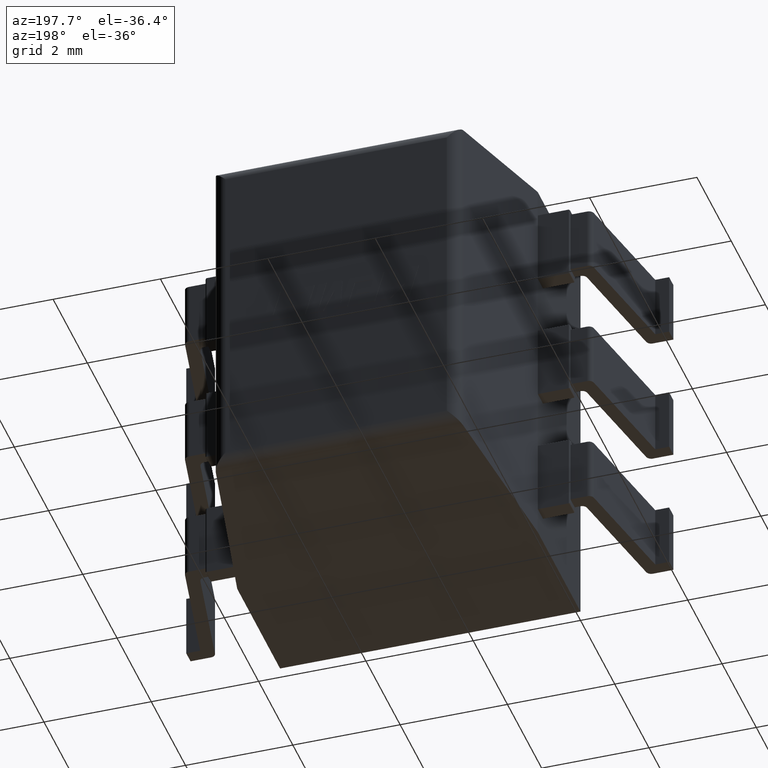
[diagram: clean part render]
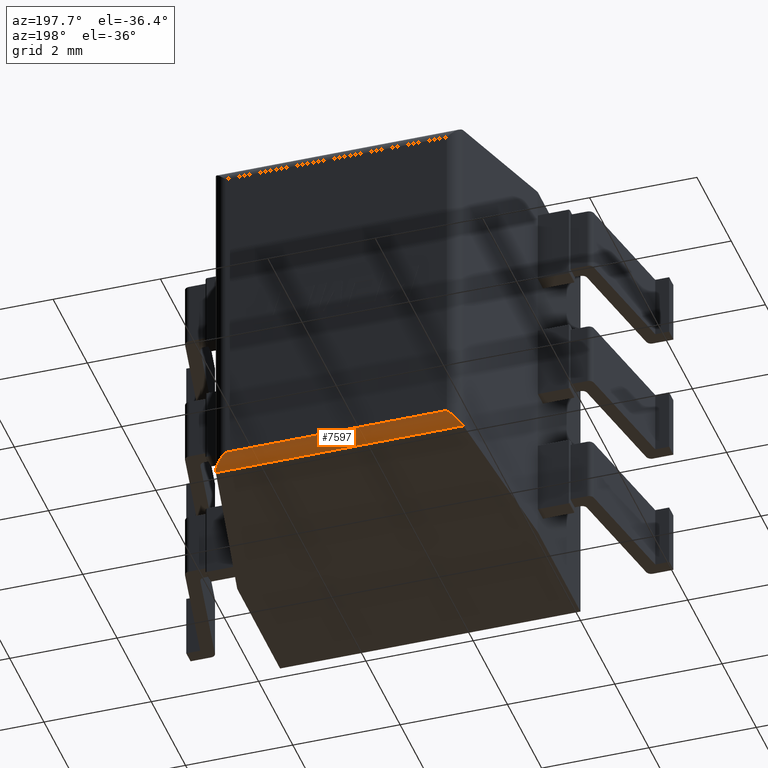
[diagram: same view with one face highlighted and labeled with its STEP entity id]
A machine part, auxiliary view. The second image highlights one B-rep face of the part: STEP entity #7597.
In plain terms, the highlighted cylindrical surface (edge-blend (fillet) strip) has radius 0.25 mm, axis along (-1, 0, 0).
Its self-contained STEP definition (entity closure, byte-faithful):
#95 = VERTEX_POINT ( 'NONE', #6506 ) ;
#215 =( BOUNDED_CURVE ( )  B_SPLINE_CURVE ( 3, ( #589, #6616, #1930, #4609 ),
 .UNSPECIFIED., .F., .F. ) 
 B_SPLINE_CURVE_WITH_KNOTS ( ( 4, 4 ),
 ( 4.712388980384691500, 6.108652381980156100 ),
 .UNSPECIFIED. ) 
 CURVE ( )  GEOMETRIC_REPRESENTATION_ITEM ( )  RATIONAL_B_SPLINE_CURVE ( ( 1.000000000000000000, 0.8440296287459850800, 0.8440296287459850800, 1.000000000000000000 ) ) 
 REPRESENTATION_ITEM ( '' )  );
#589 = CARTESIAN_POINT ( 'NONE',  ( 0.7387558499197165500, 5.500000000000000000, -6.761244150080282900 ) ) ;
#642 = CARTESIAN_POINT ( 'NONE',  ( 5.071019057874602600, 5.293412044416731600, -7.007446088333335200 ) ) ;
#1109 = EDGE_CURVE ( 'NONE', #6581, #3426, #4409, .T. ) ;
#1292 = DIRECTION ( 'NONE',  ( -1.000000000000000000, -0.0000000000000000000, 0.0000000000000000000 ) ) ;
#1348 = LINE ( 'NONE', #642, #2508 ) ;
#1410 = CARTESIAN_POINT ( 'NONE',  ( 0.7387558499197165500, 5.500000000000000000, -6.761244150080282900 ) ) ;
#1428 = DIRECTION ( 'NONE',  ( 0.0000000000000000000, 0.0000000000000000000, 1.000000000000000000 ) ) ;
#1930 = CARTESIAN_POINT ( 'NONE',  ( 0.5145947842552224300, 5.418412044416730700, -6.985405215744776800 ) ) ;
#2073 = CARTESIAN_POINT ( 'NONE',  ( 5.107446088333335700, 5.293412044416731600, -7.007446088333335200 ) ) ;
#2508 = VECTOR ( 'NONE', #5377, 1000.000000000000000 ) ;
#3148 = FACE_OUTER_BOUND ( 'NONE', #6419, .T. ) ;
#3382 = CARTESIAN_POINT ( 'NONE',  ( 0.5289809421253955900, 5.500000000000000000, -6.761244150080282900 ) ) ;
#3426 = VERTEX_POINT ( 'NONE', #4397 ) ;
#3620 = VECTOR ( 'NONE', #1292, 1000.000000000000000 ) ;
#4081 = VERTEX_POINT ( 'NONE', #1410 ) ;
#4151 = CARTESIAN_POINT ( 'NONE',  ( 0.0000000000000000000, 5.249999999999999100, -6.761244150080282900 ) ) ;
#4397 = CARTESIAN_POINT ( 'NONE',  ( 4.861244150080283400, 5.500000000000000000, -6.761244150080282900 ) ) ;
#4409 =( BOUNDED_CURVE ( )  B_SPLINE_CURVE ( 3, ( #2073, #8170, #6147, #5470 ),
 .UNSPECIFIED., .F., .F. ) 
 B_SPLINE_CURVE_WITH_KNOTS ( ( 4, 4 ),
 ( 0.1745329251994306200, 1.570796326794896600 ),
 .UNSPECIFIED. ) 
 CURVE ( )  GEOMETRIC_REPRESENTATION_ITEM ( )  RATIONAL_B_SPLINE_CURVE ( ( 1.000000000000000000, 0.8440296287459847500, 0.8440296287459847500, 1.000000000000000000 ) ) 
 REPRESENTATION_ITEM ( '' )  );
#4609 = CARTESIAN_POINT ( 'NONE',  ( 0.4925539116666644000, 5.293412044416731600, -7.007446088333335200 ) ) ;
#4746 = ORIENTED_EDGE ( 'NONE', *, *, #4910, .F. ) ;
#4909 = CARTESIAN_POINT ( 'NONE',  ( 5.107446088333335700, 5.293412044416731600, -7.007446088333335200 ) ) ;
#4910 = EDGE_CURVE ( 'NONE', #3426, #4081, #5196, .T. ) ;
#5196 = LINE ( 'NONE', #3382, #3620 ) ;
#5377 = DIRECTION ( 'NONE',  ( 1.000000000000000000, -0.0000000000000000000, -0.0000000000000000000 ) ) ;
#5470 = CARTESIAN_POINT ( 'NONE',  ( 4.861244150080283400, 5.500000000000000000, -6.761244150080282900 ) ) ;
#5476 = DIRECTION ( 'NONE',  ( -1.000000000000000000, 0.0000000000000000000, 0.0000000000000000000 ) ) ;
#5891 = ORIENTED_EDGE ( 'NONE', *, *, #7744, .F. ) ;
#5971 = CYLINDRICAL_SURFACE ( 'NONE', #8445, 0.2500000000000002200 ) ;
#6147 = CARTESIAN_POINT ( 'NONE',  ( 4.988172476566001400, 5.500000000000000000, -6.888172476566003500 ) ) ;
#6419 = EDGE_LOOP ( 'NONE', ( #8709, #7724, #5891, #4746 ) ) ;
#6506 = CARTESIAN_POINT ( 'NONE',  ( 0.4925539116666644000, 5.293412044416731600, -7.007446088333335200 ) ) ;
#6581 = VERTEX_POINT ( 'NONE', #4909 ) ;
#6616 = CARTESIAN_POINT ( 'NONE',  ( 0.6118275234339979300, 5.500000000000000000, -6.888172476566001700 ) ) ;
#6833 = EDGE_CURVE ( 'NONE', #95, #6581, #1348, .T. ) ;
#7597 = ADVANCED_FACE ( 'NONE', ( #3148 ), #5971, .T. ) ;
#7724 = ORIENTED_EDGE ( 'NONE', *, *, #6833, .F. ) ;
#7744 = EDGE_CURVE ( 'NONE', #4081, #95, #215, .T. ) ;
#8170 = CARTESIAN_POINT ( 'NONE',  ( 5.085405215744777300, 5.418412044416731600, -6.985405215744778600 ) ) ;
#8445 = AXIS2_PLACEMENT_3D ( 'NONE', #4151, #5476, #1428 ) ;
#8709 = ORIENTED_EDGE ( 'NONE', *, *, #1109, .F. ) ;